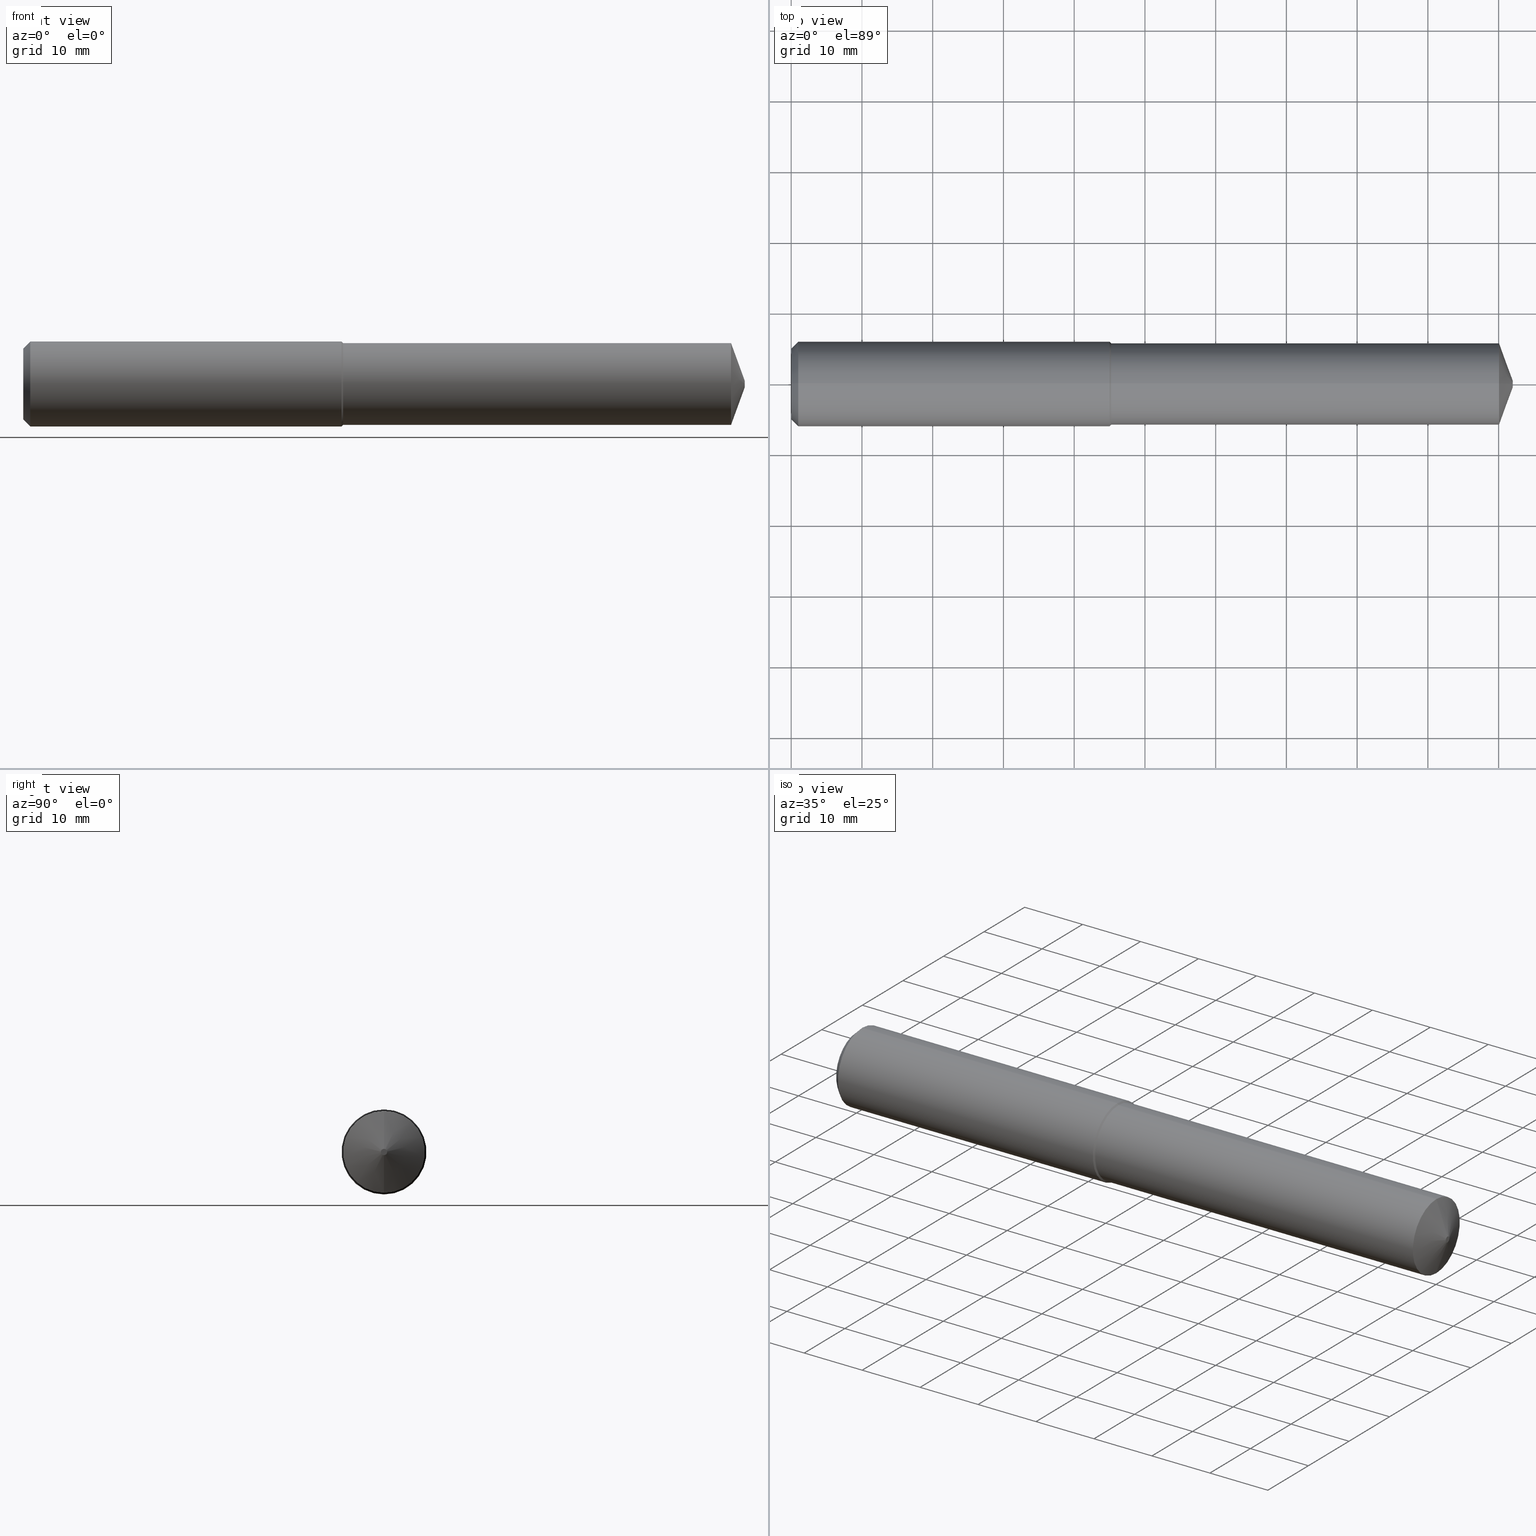
[diagram: canonical four-view strip — front | top / right | iso, engineering-drawing reading convention]
A machine part, canonical four-view strip (front | top / right | iso — engineering-drawing reading convention). The complete STEP part file that produces these views, byte-faithful:
ISO-10303-21;
HEADER;
FILE_DESCRIPTION (( 'STEP AP203' ),
    '1' );
FILE_NAME ('407018-DFX3-455A.STEP',
    '2024-10-02T22:23:27',
    ( '' ),
    ( '' ),
    'SwSTEP 2.0',
    'SolidWorks 2024',
    '' );
FILE_SCHEMA (( 'CONFIG_CONTROL_DESIGN' ));
ENDSEC;

DATA;
#1 = ADVANCED_FACE ( 'NONE', ( #353 ), #197, .T. ) ;
#2 = ORIENTED_EDGE ( 'NONE', *, *, #256, .F. ) ;
#3 = EDGE_LOOP ( 'NONE', ( #287, #314, #378, #377 ) ) ;
#4 = AXIS2_PLACEMENT_3D ( 'NONE', #15, #136, #66 ) ;
#5 = APPROVAL_ROLE ( '' ) ;
#6 = CARTESIAN_POINT ( 'NONE',  ( -0.03808593750000075634, 2.892866454678788763E-17, 0.2362204724409450174 ) ) ;
#7 = DIRECTION ( 'NONE',  ( 0.000000000000000000, 0.000000000000000000, -1.000000000000000000 ) ) ;
#8 = EDGE_CURVE ( 'NONE', #167, #148, #93, .T. ) ;
#9 = CARTESIAN_POINT ( 'NONE',  ( 3.939314282300160563, 0.000000000000000000, 0.000000000000000000 ) ) ;
#10 = DIRECTION ( 'NONE',  ( 0.000000000000000000, 0.000000000000000000, -1.000000000000000000 ) ) ;
#11 = CC_DESIGN_PERSON_AND_ORGANIZATION_ASSIGNMENT ( #90, #76, ( #86 ) ) ;
#12 = CARTESIAN_POINT ( 'NONE',  ( 1.771653543307086576, 0.000000000000000000, 0.000000000000000000 ) ) ;
#13 = DIRECTION ( 'NONE',  ( 1.000000000000000000, 0.000000000000000000, -0.000000000000000000 ) ) ;
#14 = AXIS2_PLACEMENT_3D ( 'NONE', #335, #184, #125 ) ;
#15 = CARTESIAN_POINT ( 'NONE',  ( 1.780374015748031447, 0.000000000000000000, 0.000000000000000000 ) ) ;
#16 =( NAMED_UNIT ( * ) PLANE_ANGLE_UNIT ( ) SI_UNIT ( $, .RADIAN. ) );
#17 = ORIENTED_EDGE ( 'NONE', *, *, #38, .F. ) ;
#18 = ORIENTED_EDGE ( 'NONE', *, *, #276, .T. ) ;
#19 = CLOSED_SHELL ( 'NONE', ( #124, #95, #313, #69, #24, #1, #234, #269, #161, #165, #299, #263 ) ) ;
#20 = LOCAL_TIME ( 15, 23, 27.00000000000000000, #232 ) ;
#21 = DIRECTION ( 'NONE',  ( 0.000000000000000000, 0.000000000000000000, -1.000000000000000000 ) ) ;
#22 = ORIENTED_EDGE ( 'NONE', *, *, #63, .F. ) ;
#23 = CC_DESIGN_DATE_AND_TIME_ASSIGNMENT ( #376, #262, ( #169 ) ) ;
#24 = ADVANCED_FACE ( 'NONE', ( #226 ), #260, .T. ) ;
#25 = PERSON_AND_ORGANIZATION_ROLE ( 'creator' ) ;
#26 = ORIENTED_EDGE ( 'NONE', *, *, #8, .F. ) ;
#27 = CALENDAR_DATE ( 2024, 2, 10 ) ;
#28 = DIRECTION ( 'NONE',  ( -1.000000000000000000, 0.000000000000000000, 0.000000000000000000 ) ) ;
#29 = PRODUCT_DEFINITION_SHAPE ( 'NONE', 'NONE',  #98 ) ;
#30 = AXIS2_PLACEMENT_3D ( 'NONE', #367, #274, #243 ) ;
#31 = ORIENTED_EDGE ( 'NONE', *, *, #211, .T. ) ;
#32 = VERTEX_POINT ( 'NONE', #352 ) ;
#33 = DIRECTION ( 'NONE',  ( 1.000000000000000000, -0.000000000000000000, -0.000000000000000000 ) ) ;
#34 = PERSON_AND_ORGANIZATION_ROLE ( 'design_owner' ) ;
#35 = AXIS2_PLACEMENT_3D ( 'NONE', #305, #13, #46 ) ;
#36 = DIRECTION ( 'NONE',  ( 1.000000000000000000, -0.000000000000000000, -0.000000000000000000 ) ) ;
#37 = LOCAL_TIME ( 15, 23, 27.00000000000000000, #151 ) ;
#38 = EDGE_CURVE ( 'NONE', #133, #148, #57, .T. ) ;
#39 = FACE_OUTER_BOUND ( 'NONE', #258, .T. ) ;
#40 = DATE_AND_TIME ( #319, #131 ) ;
#41 = CARTESIAN_POINT ( 'NONE',  ( -0.03808593750000075634, 0.000000000000000000, 0.000000000000000000 ) ) ;
#42 = CARTESIAN_POINT ( 'NONE',  ( 1.771653543307086576, 0.000000000000000000, 0.2362204724409451007 ) ) ;
#43 = CC_DESIGN_APPROVAL ( #321, ( #169 ) ) ;
#44 = DIRECTION ( 'NONE',  ( 0.000000000000000000, 0.000000000000000000, -1.000000000000000000 ) ) ;
#45 = FACE_OUTER_BOUND ( 'NONE', #55, .T. ) ;
#46 = DIRECTION ( 'NONE',  ( -0.000000000000000000, 0.000000000000000000, -1.000000000000000000 ) ) ;
#47 = CONICAL_SURFACE ( 'NONE', #326, 0.2275000000000002021, 0.7853981633974502774 ) ;
#48 = ORIENTED_EDGE ( 'NONE', *, *, #334, .F. ) ;
#49 = LINE ( 'NONE', #217, #119 ) ;
#50 = VERTEX_POINT ( 'NONE', #317 ) ;
#51 = AXIS2_PLACEMENT_3D ( 'NONE', #203, #231, #143 ) ;
#52 = DIRECTION ( 'NONE',  ( 1.000000000000000000, -0.000000000000000000, -0.000000000000000000 ) ) ;
#53 = PERSON_AND_ORGANIZATION ( #180, #310 ) ;
#54 = ORIENTED_EDGE ( 'NONE', *, *, #322, .F. ) ;
#55 = EDGE_LOOP ( 'NONE', ( #255, #320, #285, #31 ) ) ;
#56 = ORIENTED_EDGE ( 'NONE', *, *, #75, .T. ) ;
#57 = LINE ( 'NONE', #291, #237 ) ;
#58 = FACE_OUTER_BOUND ( 'NONE', #191, .T. ) ;
#59 = DIRECTION ( 'NONE',  ( 0.000000000000000000, 0.000000000000000000, 1.000000000000000000 ) ) ;
#60 = DIRECTION ( 'NONE',  ( 0.000000000000000000, 0.000000000000000000, -1.000000000000000000 ) ) ;
#61 = APPROVAL_ROLE ( '' ) ;
#62 = CARTESIAN_POINT ( 'NONE',  ( 4.268512490100411279E-18, 0.000000000000000000, -0.1968503937007874405 ) ) ;
#63 = EDGE_CURVE ( 'NONE', #87, #171, #224, .T. ) ;
#64 = LINE ( 'NONE', #6, #152 ) ;
#65 = DIRECTION ( 'NONE',  ( 1.000000000000000000, -0.000000000000000000, -0.000000000000000000 ) ) ;
#66 = DIRECTION ( 'NONE',  ( 0.000000000000000000, 0.000000000000000000, 1.000000000000000000 ) ) ;
#67 = FACE_OUTER_BOUND ( 'NONE', #355, .T. ) ;
#68 = EDGE_LOOP ( 'NONE', ( #371, #308, #257, #177 ) ) ;
#69 = ADVANCED_FACE ( 'NONE', ( #323 ), #336, .T. ) ;
#70 =( CONVERSION_BASED_UNIT ( 'INCH', #73 ) LENGTH_UNIT ( ) NAMED_UNIT ( #140 ) );
#71 = ORIENTED_EDGE ( 'NONE', *, *, #250, .T. ) ;
#72 = AXIS2_PLACEMENT_3D ( 'NONE', #12, #366, #304 ) ;
#73 = LENGTH_MEASURE_WITH_UNIT ( LENGTH_MEASURE( 0.02539999999999999897 ), #345 );
#74 = CARTESIAN_POINT ( 'NONE',  ( -0.03808593750000075634, 0.000000000000000000, 0.000000000000000000 ) ) ;
#75 = EDGE_CURVE ( 'NONE', #117, #133, #186, .T. ) ;
#76 = PERSON_AND_ORGANIZATION_ROLE ( 'design_supplier' ) ;
#77 = CONICAL_SURFACE ( 'NONE', #213, 0.2362204724409449619, 0.7853981633974487231 ) ;
#78 = CONICAL_SURFACE ( 'NONE', #4, 0.2275000000000002021, 0.7853981633974502774 ) ;
#79 = VERTEX_POINT ( 'NONE', #91 ) ;
#80 = EDGE_CURVE ( 'NONE', #133, #327, #130, .T. ) ;
#81 = PERSON_AND_ORGANIZATION_ROLE ( 'classification_officer' ) ;
#82 = CARTESIAN_POINT ( 'NONE',  ( 3.939314282300160563, 0.000000000000000000, 0.000000000000000000 ) ) ;
#83 = CARTESIAN_POINT ( 'NONE',  ( 1.186075246418296407E-18, 0.1968503937007874405, 0.000000000000000000 ) ) ;
#84 = AXIS2_PLACEMENT_3D ( 'NONE', #205, #65, #7 ) ;
#85 = CC_DESIGN_PERSON_AND_ORGANIZATION_ASSIGNMENT ( #282, #25, ( #98 ) ) ;
#86 = PRODUCT_DEFINITION_FORMATION_WITH_SPECIFIED_SOURCE ( 'ANY', '', #252, .NOT_KNOWN. ) ;
#87 = VERTEX_POINT ( 'NONE', #122 ) ;
#88 = DIRECTION ( 'NONE',  ( 1.000000000000000000, -0.000000000000000000, -0.000000000000000000 ) ) ;
#89 = EDGE_CURVE ( 'NONE', #32, #148, #300, .T. ) ;
#90 = PERSON_AND_ORGANIZATION ( #180, #310 ) ;
#91 = CARTESIAN_POINT ( 'NONE',  ( 4.015748031496062964, 1.500192328955513910E-17, -0.01750000000000049780 ) ) ;
#92 = APPLICATION_PROTOCOL_DEFINITION ( 'international standard', 'config_control_design', 1994, #230 ) ;
#93 = CIRCLE ( 'NONE', #51, 0.2362204724409451007 ) ;
#94 = DIRECTION ( 'NONE',  ( 0.000000000000000000, 0.000000000000000000, -1.000000000000000000 ) ) ;
#95 = ADVANCED_FACE ( 'NONE', ( #153 ), #331, .T. ) ;
#96 = CARTESIAN_POINT ( 'NONE',  ( -0.03808593750000075634, 0.000000000000000000, 0.000000000000000000 ) ) ;
#97 = CARTESIAN_POINT ( 'NONE',  ( 4.015748031496062964, 0.000000000000000000, 0.01750000000000049780 ) ) ;
#98 = PRODUCT_DEFINITION ( 'UNKNOWN', '', #86, #128 ) ;
#99 = FACE_OUTER_BOUND ( 'NONE', #350, .T. ) ;
#100 = CIRCLE ( 'NONE', #289, 0.01750000000000049780 ) ;
#101 = LINE ( 'NONE', #110, #218 ) ;
#102 = ORIENTED_EDGE ( 'NONE', *, *, #38, .T. ) ;
#103 = EDGE_CURVE ( 'NONE', #327, #133, #187, .T. ) ;
#104 = LINE ( 'NONE', #346, #349 ) ;
#105 = DIRECTION ( 'NONE',  ( 0.000000000000000000, 0.000000000000000000, -1.000000000000000000 ) ) ;
#106 = VERTEX_POINT ( 'NONE', #236 ) ;
#107 = AXIS2_PLACEMENT_3D ( 'NONE', #74, #214, #189 ) ;
#108 = AXIS2_PLACEMENT_3D ( 'NONE', #123, #88, #94 ) ;
#109 = EDGE_CURVE ( 'NONE', #117, #149, #288, .T. ) ;
#110 = CARTESIAN_POINT ( 'NONE',  ( 0.03937007874015747977, 2.892866454678788147E-17, 0.2362204724409449619 ) ) ;
#111 = COORDINATED_UNIVERSAL_TIME_OFFSET ( 8, 0, .BEHIND. ) ;
#112 = ORIENTED_EDGE ( 'NONE', *, *, #328, .T. ) ;
#113 = AXIS2_PLACEMENT_3D ( 'NONE', #301, #267, #365 ) ;
#114 = DATE_AND_TIME ( #254, #20 ) ;
#115 = EDGE_LOOP ( 'NONE', ( #283, #228, #141, #48 ) ) ;
#116 = ORIENTED_EDGE ( 'NONE', *, *, #341, .F. ) ;
#117 = VERTEX_POINT ( 'NONE', #62 ) ;
#118 = CIRCLE ( 'NONE', #168, 0.2275000000000002021 ) ;
#119 = VECTOR ( 'NONE', #216, 39.37007874015748143 ) ;
#120 = ORIENTED_EDGE ( 'NONE', *, *, #103, .T. ) ;
#121 = APPROVAL_ROLE ( '' ) ;
#122 = CARTESIAN_POINT ( 'NONE',  ( 3.939314282300160563, 2.786071468060234087E-17, -0.2275000000000004796 ) ) ;
#123 = CARTESIAN_POINT ( 'NONE',  ( 0.03937007874015747977, 0.000000000000000000, 0.000000000000000000 ) ) ;
#124 = ADVANCED_FACE ( 'NONE', ( #39 ), #316, .T. ) ;
#125 = DIRECTION ( 'NONE',  ( 0.000000000000000000, 0.000000000000000000, -1.000000000000000000 ) ) ;
#126 = CARTESIAN_POINT ( 'NONE',  ( 0.03937007874015747977, 0.000000000000000000, 0.000000000000000000 ) ) ;
#127 = CARTESIAN_POINT ( 'NONE',  ( 1.780374015748031447, 0.000000000000000000, 0.000000000000000000 ) ) ;
#128 = DESIGN_CONTEXT ( 'detailed design', #230, 'design' ) ;
#129 = CARTESIAN_POINT ( 'NONE',  ( 1.780374015748031447, 0.000000000000000000, 0.000000000000000000 ) ) ;
#130 = CIRCLE ( 'NONE', #108, 0.2362204724409449619 ) ;
#131 = LOCAL_TIME ( 15, 23, 27.00000000000000000, #359 ) ;
#132 = DIRECTION ( 'NONE',  ( 0.7071067811865472397, 8.659560562354936556E-17, 0.7071067811865477948 ) ) ;
#133 = VERTEX_POINT ( 'NONE', #363 ) ;
#134 = DIRECTION ( 'NONE',  ( -0.7071067811865461294, 0.000000000000000000, 0.7071067811865489050 ) ) ;
#135 = EDGE_CURVE ( 'NONE', #106, #171, #156, .T. ) ;
#136 = DIRECTION ( 'NONE',  ( -1.000000000000000000, 0.000000000000000000, 0.000000000000000000 ) ) ;
#137 = EDGE_LOOP ( 'NONE', ( #248, #245, #374, #17 ) ) ;
#138 = APPROVAL_PERSON_ORGANIZATION ( #351, #159, #121 ) ;
#139 = DIRECTION ( 'NONE',  ( 0.000000000000000000, 0.000000000000000000, -1.000000000000000000 ) ) ;
#140 = DIMENSIONAL_EXPONENTS ( 1.000000000000000000, 0.000000000000000000, 0.000000000000000000, 0.000000000000000000, 0.000000000000000000, 0.000000000000000000, 0.000000000000000000 ) ;
#141 = ORIENTED_EDGE ( 'NONE', *, *, #145, .T. ) ;
#142 = APPROVAL_STATUS ( 'not_yet_approved' ) ;
#143 = DIRECTION ( 'NONE',  ( 0.000000000000000000, 0.000000000000000000, -1.000000000000000000 ) ) ;
#144 = APPROVAL_DATE_TIME ( #40, #240 ) ;
#145 = EDGE_CURVE ( 'NONE', #148, #167, #324, .T. ) ;
#146 = ORIENTED_EDGE ( 'NONE', *, *, #8, .T. ) ;
#147 = AXIS2_PLACEMENT_3D ( 'NONE', #193, #220, #278 ) ;
#148 = VERTEX_POINT ( 'NONE', #160 ) ;
#149 = VERTEX_POINT ( 'NONE', #209 ) ;
#150 = ORIENTED_EDGE ( 'NONE', *, *, #246, .T. ) ;
#151 = COORDINATED_UNIVERSAL_TIME_OFFSET ( 8, 0, .BEHIND. ) ;
#152 = VECTOR ( 'NONE', #233, 39.37007874015748143 ) ;
#153 = FACE_OUTER_BOUND ( 'NONE', #137, .T. ) ;
#154 = DATE_AND_TIME ( #206, #356 ) ;
#155 = FACE_OUTER_BOUND ( 'NONE', #3, .T. ) ;
#156 = LINE ( 'NONE', #273, #332 ) ;
#157 = CIRCLE ( 'NONE', #309, 0.1968503937007874405 ) ;
#158 = CARTESIAN_POINT ( 'NONE',  ( 4.015748031496062964, 2.143131898507929234E-18, -0.01750000000000049780 ) ) ;
#159 = APPROVAL ( #235, 'UNSPECIFIED' ) ;
#160 = CARTESIAN_POINT ( 'NONE',  ( 1.771653543307086576, 2.892866454678789379E-17, -0.2362204724409451007 ) ) ;
#161 = ADVANCED_FACE ( 'NONE', ( #155 ), #266, .T. ) ;
#162 = CARTESIAN_POINT ( 'NONE',  ( 0.03937007874015747977, 0.000000000000000000, 0.000000000000000000 ) ) ;
#163 = DIRECTION ( 'NONE',  ( 1.000000000000000000, -0.000000000000000000, -0.000000000000000000 ) ) ;
#164 = ORIENTED_EDGE ( 'NONE', *, *, #322, .T. ) ;
#165 = ADVANCED_FACE ( 'NONE', ( #58 ), #47, .T. ) ;
#166 = DIRECTION ( 'NONE',  ( 1.000000000000000000, -0.000000000000000000, -0.000000000000000000 ) ) ;
#167 = VERTEX_POINT ( 'NONE', #42 ) ;
#168 = AXIS2_PLACEMENT_3D ( 'NONE', #129, #166, #105 ) ;
#169 = SECURITY_CLASSIFICATION ( '', '', #284 ) ;
#170 = MECHANICAL_CONTEXT ( 'NONE', #361, 'mechanical' ) ;
#171 = VERTEX_POINT ( 'NONE', #185 ) ;
#172 = APPROVAL_DATE_TIME ( #347, #159 ) ;
#173 = DIRECTION ( 'NONE',  ( 0.000000000000000000, 0.000000000000000000, 1.000000000000000000 ) ) ;
#174 = ORIENTED_EDGE ( 'NONE', *, *, #80, .F. ) ;
#175 = DIRECTION ( 'NONE',  ( -1.000000000000000000, 0.000000000000000000, 0.000000000000000000 ) ) ;
#176 = EDGE_CURVE ( 'NONE', #327, #167, #64, .T. ) ;
#177 = ORIENTED_EDGE ( 'NONE', *, *, #227, .F. ) ;
#178 = CC_DESIGN_PERSON_AND_ORGANIZATION_ASSIGNMENT ( #196, #81, ( #169 ) ) ;
#179 = DIRECTION ( 'NONE',  ( -1.000000000000000000, 0.000000000000000000, 0.000000000000000000 ) ) ;
#180 = PERSON ( 'UNSPECIFIED', 'UNSPECIFIED', 'UNSPECIFIED', ('UNSPECIFIED'), ('UNSPECIFIED'), ('UNSPECIFIED') ) ;
#181 = COORDINATED_UNIVERSAL_TIME_OFFSET ( 8, 0, .BEHIND. ) ;
#182 = VECTOR ( 'NONE', #297, 39.37007874015748143 ) ;
#183 = CC_DESIGN_APPROVAL ( #240, ( #86 ) ) ;
#184 = DIRECTION ( 'NONE',  ( 1.000000000000000000, -0.000000000000000000, -0.000000000000000000 ) ) ;
#185 = CARTESIAN_POINT ( 'NONE',  ( 3.939314282300160563, 0.000000000000000000, 0.2275000000000004796 ) ) ;
#186 = LINE ( 'NONE', #293, #182 ) ;
#187 = CIRCLE ( 'NONE', #249, 0.2362204724409449619 ) ;
#188 = DIRECTION ( 'NONE',  ( 0.000000000000000000, 0.000000000000000000, -1.000000000000000000 ) ) ;
#189 = DIRECTION ( 'NONE',  ( 0.000000000000000000, 0.000000000000000000, -1.000000000000000000 ) ) ;
#190 = CARTESIAN_POINT ( 'NONE',  ( 1.780374015748031447, 0.000000000000000000, 0.000000000000000000 ) ) ;
#191 = EDGE_LOOP ( 'NONE', ( #259, #2, #201, #146 ) ) ;
#192 = EDGE_CURVE ( 'NONE', #79, #87, #360, .T. ) ;
#193 = CARTESIAN_POINT ( 'NONE',  ( 4.015748031496062964, 0.000000000000000000, 0.000000000000000000 ) ) ;
#194 = CYLINDRICAL_SURFACE ( 'NONE', #107, 0.2362204724409450174 ) ;
#195 = EDGE_LOOP ( 'NONE', ( #150, #199, #22, #116 ) ) ;
#196 = PERSON_AND_ORGANIZATION ( #180, #310 ) ;
#197 = PLANE ( 'NONE',  #242 ) ;
#198 = VECTOR ( 'NONE', #212, 39.37007874015748143 ) ;
#199 = ORIENTED_EDGE ( 'NONE', *, *, #135, .T. ) ;
#200 = MANIFOLD_SOLID_BREP ( 'Body', #19 ) ;
#201 = ORIENTED_EDGE ( 'NONE', *, *, #334, .T. ) ;
#202 = DIRECTION ( 'NONE',  ( 0.000000000000000000, 0.000000000000000000, 1.000000000000000000 ) ) ;
#203 = CARTESIAN_POINT ( 'NONE',  ( 1.771653543307086576, 0.000000000000000000, 0.000000000000000000 ) ) ;
#204 = DIRECTION ( 'NONE',  ( -0.7071067811865461294, 8.659560562354950115E-17, -0.7071067811865489050 ) ) ;
#205 = CARTESIAN_POINT ( 'NONE',  ( -0.03808593750000075634, 0.000000000000000000, 0.000000000000000000 ) ) ;
#206 = CALENDAR_DATE ( 2024, 2, 10 ) ;
#207 = AXIS2_PLACEMENT_3D ( 'NONE', #190, #312, #139 ) ;
#208 =( GEOMETRIC_REPRESENTATION_CONTEXT ( 3 ) GLOBAL_UNCERTAINTY_ASSIGNED_CONTEXT ( ( #286 ) ) GLOBAL_UNIT_ASSIGNED_CONTEXT ( ( #70, #16, #247 ) ) REPRESENTATION_CONTEXT ( 'NONE', 'WORKASPACE' ) );
#209 = CARTESIAN_POINT ( 'NONE',  ( 4.268512490100411279E-18, 2.651794250122222108E-17, 0.1968503937007874405 ) ) ;
#210 = DIRECTION ( 'NONE',  ( 1.000000000000000000, -0.000000000000000000, -0.000000000000000000 ) ) ;
#211 = EDGE_CURVE ( 'NONE', #171, #87, #275, .T. ) ;
#212 = DIRECTION ( 'NONE',  ( -0.3420201433256673806, 0.000000000000000000, 0.9396926207859088720 ) ) ;
#213 = AXIS2_PLACEMENT_3D ( 'NONE', #162, #277, #21 ) ;
#214 = DIRECTION ( 'NONE',  ( 1.000000000000000000, -0.000000000000000000, -0.000000000000000000 ) ) ;
#215 = CARTESIAN_POINT ( 'NONE',  ( 0.03937007874015747977, 2.892866454678788147E-17, 0.2362204724409449619 ) ) ;
#216 = DIRECTION ( 'NONE',  ( 1.000000000000000000, -0.000000000000000000, -0.000000000000000000 ) ) ;
#217 = CARTESIAN_POINT ( 'NONE',  ( -0.03808593750000075634, 0.000000000000000000, -0.2275000000000003686 ) ) ;
#218 = VECTOR ( 'NONE', #132, 39.37007874015748143 ) ;
#219 = ORIENTED_EDGE ( 'NONE', *, *, #176, .F. ) ;
#220 = DIRECTION ( 'NONE',  ( 1.000000000000000000, -0.000000000000000000, -0.000000000000000000 ) ) ;
#221 = APPLICATION_PROTOCOL_DEFINITION ( 'international standard', 'config_control_design', 1994, #361 ) ;
#222 = APPROVAL_STATUS ( 'not_yet_approved' ) ;
#223 = ORIENTED_EDGE ( 'NONE', *, *, #109, .F. ) ;
#224 = CIRCLE ( 'NONE', #338, 0.2275000000000005074 ) ;
#225 = PERSON_AND_ORGANIZATION ( #180, #310 ) ;
#226 = FACE_OUTER_BOUND ( 'NONE', #68, .T. ) ;
#227 = EDGE_CURVE ( 'NONE', #50, #171, #239, .T. ) ;
#228 = ORIENTED_EDGE ( 'NONE', *, *, #89, .T. ) ;
#229 = EDGE_LOOP ( 'NONE', ( #223, #343 ) ) ;
#230 = APPLICATION_CONTEXT ( 'configuration controlled 3d designs of mechanical parts and assemblies' ) ;
#231 = DIRECTION ( 'NONE',  ( 1.000000000000000000, -0.000000000000000000, -0.000000000000000000 ) ) ;
#232 = COORDINATED_UNIVERSAL_TIME_OFFSET ( 8, 0, .BEHIND. ) ;
#233 = DIRECTION ( 'NONE',  ( 1.000000000000000000, -0.000000000000000000, -0.000000000000000000 ) ) ;
#234 = ADVANCED_FACE ( 'NONE', ( #67 ), #279, .T. ) ;
#235 = APPROVAL_STATUS ( 'not_yet_approved' ) ;
#236 = CARTESIAN_POINT ( 'NONE',  ( 1.780374015748031447, 2.786071468060232238E-17, 0.2275000000000002021 ) ) ;
#237 = VECTOR ( 'NONE', #33, 39.37007874015748143 ) ;
#238 = CARTESIAN_POINT ( 'NONE',  ( 1.780374015748031447, 2.786071468060231005E-17, -0.2275000000000002021 ) ) ;
#239 = LINE ( 'NONE', #97, #198 ) ;
#240 = APPROVAL ( #222, 'UNSPECIFIED' ) ;
#241 = DIRECTION ( 'NONE',  ( 1.000000000000000000, -0.000000000000000000, -0.000000000000000000 ) ) ;
#242 = AXIS2_PLACEMENT_3D ( 'NONE', #83, #28, #202 ) ;
#243 = DIRECTION ( 'NONE',  ( 0.000000000000000000, 0.000000000000000000, 1.000000000000000000 ) ) ;
#244 = FACE_OUTER_BOUND ( 'NONE', #290, .T. ) ;
#245 = ORIENTED_EDGE ( 'NONE', *, *, #176, .T. ) ;
#246 = EDGE_CURVE ( 'NONE', #32, #106, #354, .T. ) ;
#247 =( NAMED_UNIT ( * ) SI_UNIT ( $, .STERADIAN. ) SOLID_ANGLE_UNIT ( ) );
#248 = ORIENTED_EDGE ( 'NONE', *, *, #80, .T. ) ;
#249 = AXIS2_PLACEMENT_3D ( 'NONE', #126, #36, #188 ) ;
#250 = EDGE_CURVE ( 'NONE', #149, #117, #157, .T. ) ;
#251 = APPROVAL_DATE_TIME ( #114, #321 ) ;
#252 = PRODUCT ( '407018-DFX3-455A', '407018-DFX3-455A', '', ( #170 ) ) ;
#253 = DIRECTION ( 'NONE',  ( 0.000000000000000000, 0.000000000000000000, -1.000000000000000000 ) ) ;
#254 = CALENDAR_DATE ( 2024, 2, 10 ) ;
#255 = ORIENTED_EDGE ( 'NONE', *, *, #192, .F. ) ;
#256 = EDGE_CURVE ( 'NONE', #106, #32, #118, .T. ) ;
#257 = ORIENTED_EDGE ( 'NONE', *, *, #63, .T. ) ;
#258 = EDGE_LOOP ( 'NONE', ( #375, #164, #174, #315 ) ) ;
#259 = ORIENTED_EDGE ( 'NONE', *, *, #89, .F. ) ;
#260 = CONICAL_SURFACE ( 'NONE', #270, 0.01750000000000049780, 1.221730476396032161 ) ;
#261 = CC_DESIGN_SECURITY_CLASSIFICATION ( #169, ( #86 ) ) ;
#262 = DATE_TIME_ROLE ( 'classification_date' ) ;
#263 = ADVANCED_FACE ( 'NONE', ( #244 ), #77, .T. ) ;
#264 = DIRECTION ( 'NONE',  ( 0.000000000000000000, 0.000000000000000000, 1.000000000000000000 ) ) ;
#265 = DIRECTION ( 'NONE',  ( 1.000000000000000000, 0.000000000000000000, 0.000000000000000000 ) ) ;
#266 = CYLINDRICAL_SURFACE ( 'NONE', #364, 0.2275000000000003686 ) ;
#267 = DIRECTION ( 'NONE',  ( 1.000000000000000000, -0.000000000000000000, -0.000000000000000000 ) ) ;
#268 = CC_DESIGN_DATE_AND_TIME_ASSIGNMENT ( #154, #333, ( #98 ) ) ;
#269 = ADVANCED_FACE ( 'NONE', ( #45 ), #294, .T. ) ;
#270 = AXIS2_PLACEMENT_3D ( 'NONE', #325, #175, #173 ) ;
#271 = APPROVAL_PERSON_ORGANIZATION ( #292, #321, #61 ) ;
#272 = DIRECTION ( 'NONE',  ( -0.3420201433256673806, 1.150791560227850763E-16, -0.9396926207859088720 ) ) ;
#273 = CARTESIAN_POINT ( 'NONE',  ( -0.03808593750000075634, 2.786071468060232854E-17, 0.2275000000000003686 ) ) ;
#274 = DIRECTION ( 'NONE',  ( -1.000000000000000000, 0.000000000000000000, 0.000000000000000000 ) ) ;
#275 = CIRCLE ( 'NONE', #280, 0.2275000000000005074 ) ;
#276 = EDGE_CURVE ( 'NONE', #79, #50, #348, .T. ) ;
#277 = DIRECTION ( 'NONE',  ( 1.000000000000000000, -0.000000000000000000, -0.000000000000000000 ) ) ;
#278 = DIRECTION ( 'NONE',  ( 0.000000000000000000, 0.000000000000000000, -1.000000000000000000 ) ) ;
#279 = PLANE ( 'NONE',  #35 ) ;
#280 = AXIS2_PLACEMENT_3D ( 'NONE', #9, #241, #10 ) ;
#281 = AXIS2_PLACEMENT_3D ( 'NONE', #296, #59, #265 ) ;
#282 = PERSON_AND_ORGANIZATION ( #180, #310 ) ;
#283 = ORIENTED_EDGE ( 'NONE', *, *, #246, .F. ) ;
#284 = SECURITY_CLASSIFICATION_LEVEL ( 'unclassified' ) ;
#285 = ORIENTED_EDGE ( 'NONE', *, *, #227, .T. ) ;
#286 = UNCERTAINTY_MEASURE_WITH_UNIT (LENGTH_MEASURE( 1.000000000000000082E-05 ), #70, 'distance_accuracy_value', 'NONE');
#287 = ORIENTED_EDGE ( 'NONE', *, *, #135, .F. ) ;
#288 = CIRCLE ( 'NONE', #14, 0.1968503937007874405 ) ;
#289 = AXIS2_PLACEMENT_3D ( 'NONE', #311, #370, #342 ) ;
#290 = EDGE_LOOP ( 'NONE', ( #54, #71, #56, #358 ) ) ;
#291 = CARTESIAN_POINT ( 'NONE',  ( -0.03808593750000075634, 0.000000000000000000, -0.2362204724409450174 ) ) ;
#292 = PERSON_AND_ORGANIZATION ( #180, #310 ) ;
#293 = CARTESIAN_POINT ( 'NONE',  ( 0.03937007874015747977, 0.000000000000000000, -0.2362204724409449619 ) ) ;
#294 = CONICAL_SURFACE ( 'NONE', #30, 0.01750000000000049780, 1.221730476396032161 ) ;
#295 = LOCAL_TIME ( 15, 23, 27.00000000000000000, #111 ) ;
#296 = CARTESIAN_POINT ( 'NONE',  ( 0.000000000000000000, 0.000000000000000000, 0.000000000000000000 ) ) ;
#297 = DIRECTION ( 'NONE',  ( 0.7071067811865472397, 0.000000000000000000, -0.7071067811865477948 ) ) ;
#298 = PERSON_AND_ORGANIZATION ( #180, #310 ) ;
#299 = ADVANCED_FACE ( 'NONE', ( #99 ), #194, .T. ) ;
#300 = LINE ( 'NONE', #238, #302 ) ;
#301 = CARTESIAN_POINT ( 'NONE',  ( 0.03937007874015747977, 0.000000000000000000, 0.000000000000000000 ) ) ;
#302 = VECTOR ( 'NONE', #204, 39.37007874015748143 ) ;
#303 = APPROVAL_PERSON_ORGANIZATION ( #298, #240, #5 ) ;
#304 = DIRECTION ( 'NONE',  ( 0.000000000000000000, 0.000000000000000000, -1.000000000000000000 ) ) ;
#305 = CARTESIAN_POINT ( 'NONE',  ( 4.015748031496062964, 0.000000000000000000, 0.000000000000000000 ) ) ;
#306 = CC_DESIGN_PERSON_AND_ORGANIZATION_ASSIGNMENT ( #53, #330, ( #86 ) ) ;
#307 = CARTESIAN_POINT ( 'NONE',  ( 4.268512490100411279E-18, 0.000000000000000000, 0.000000000000000000 ) ) ;
#308 = ORIENTED_EDGE ( 'NONE', *, *, #192, .T. ) ;
#309 = AXIS2_PLACEMENT_3D ( 'NONE', #307, #163, #339 ) ;
#310 = ORGANIZATION ( 'UNSPECIFIED', 'UNSPECIFIED', '' ) ;
#311 = CARTESIAN_POINT ( 'NONE',  ( 4.015748031496062964, 0.000000000000000000, 0.000000000000000000 ) ) ;
#312 = DIRECTION ( 'NONE',  ( 1.000000000000000000, -0.000000000000000000, -0.000000000000000000 ) ) ;
#313 = ADVANCED_FACE ( 'NONE', ( #369 ), #78, .T. ) ;
#314 = ORIENTED_EDGE ( 'NONE', *, *, #256, .T. ) ;
#315 = ORIENTED_EDGE ( 'NONE', *, *, #75, .F. ) ;
#316 = CONICAL_SURFACE ( 'NONE', #113, 0.2362204724409449619, 0.7853981633974487231 ) ;
#317 = CARTESIAN_POINT ( 'NONE',  ( 4.015748031496062964, 0.000000000000000000, 0.01750000000000049780 ) ) ;
#318 = CC_DESIGN_PERSON_AND_ORGANIZATION_ASSIGNMENT ( #225, #34, ( #252 ) ) ;
#319 = CALENDAR_DATE ( 2024, 2, 10 ) ;
#320 = ORIENTED_EDGE ( 'NONE', *, *, #328, .F. ) ;
#321 = APPROVAL ( #142, 'UNSPECIFIED' ) ;
#322 = EDGE_CURVE ( 'NONE', #149, #327, #101, .T. ) ;
#323 = FACE_OUTER_BOUND ( 'NONE', #195, .T. ) ;
#324 = CIRCLE ( 'NONE', #72, 0.2362204724409451007 ) ;
#325 = CARTESIAN_POINT ( 'NONE',  ( 4.015748031496062964, 0.000000000000000000, 0.000000000000000000 ) ) ;
#326 = AXIS2_PLACEMENT_3D ( 'NONE', #127, #179, #264 ) ;
#327 = VERTEX_POINT ( 'NONE', #215 ) ;
#328 = EDGE_CURVE ( 'NONE', #50, #79, #100, .T. ) ;
#329 = DIRECTION ( 'NONE',  ( 1.000000000000000000, -0.000000000000000000, -0.000000000000000000 ) ) ;
#330 = PERSON_AND_ORGANIZATION_ROLE ( 'creator' ) ;
#331 = CYLINDRICAL_SURFACE ( 'NONE', #372, 0.2362204724409450174 ) ;
#332 = VECTOR ( 'NONE', #329, 39.37007874015748143 ) ;
#333 = DATE_TIME_ROLE ( 'creation_date' ) ;
#334 = EDGE_CURVE ( 'NONE', #106, #167, #104, .T. ) ;
#335 = CARTESIAN_POINT ( 'NONE',  ( 4.268512490100411279E-18, 0.000000000000000000, 0.000000000000000000 ) ) ;
#336 = CYLINDRICAL_SURFACE ( 'NONE', #84, 0.2275000000000003686 ) ;
#337 = DIRECTION ( 'NONE',  ( 1.000000000000000000, -0.000000000000000000, -0.000000000000000000 ) ) ;
#338 = AXIS2_PLACEMENT_3D ( 'NONE', #82, #52, #253 ) ;
#339 = DIRECTION ( 'NONE',  ( 0.000000000000000000, 0.000000000000000000, -1.000000000000000000 ) ) ;
#340 = PRODUCT_RELATED_PRODUCT_CATEGORY ( 'detail', '', ( #252 ) ) ;
#341 = EDGE_CURVE ( 'NONE', #32, #87, #49, .T. ) ;
#342 = DIRECTION ( 'NONE',  ( 0.000000000000000000, 0.000000000000000000, -1.000000000000000000 ) ) ;
#343 = ORIENTED_EDGE ( 'NONE', *, *, #250, .F. ) ;
#344 = CC_DESIGN_APPROVAL ( #159, ( #98 ) ) ;
#345 =( LENGTH_UNIT ( ) NAMED_UNIT ( * ) SI_UNIT ( $, .METRE. ) );
#346 = CARTESIAN_POINT ( 'NONE',  ( 1.780374015748031447, 0.000000000000000000, 0.2275000000000002021 ) ) ;
#347 = DATE_AND_TIME ( #362, #295 ) ;
#348 = CIRCLE ( 'NONE', #147, 0.01750000000000049780 ) ;
#349 = VECTOR ( 'NONE', #134, 39.37007874015748143 ) ;
#350 = EDGE_LOOP ( 'NONE', ( #219, #120, #102, #26 ) ) ;
#351 = PERSON_AND_ORGANIZATION ( #180, #310 ) ;
#352 = CARTESIAN_POINT ( 'NONE',  ( 1.780374015748031447, 0.000000000000000000, -0.2275000000000002021 ) ) ;
#353 = FACE_OUTER_BOUND ( 'NONE', #229, .T. ) ;
#354 = CIRCLE ( 'NONE', #207, 0.2275000000000002021 ) ;
#355 = EDGE_LOOP ( 'NONE', ( #112, #18 ) ) ;
#356 = LOCAL_TIME ( 15, 23, 27.00000000000000000, #181 ) ;
#357 = ADVANCED_BREP_SHAPE_REPRESENTATION ( '407018-DFX3-455A', ( #200, #281 ), #208 ) ;
#358 = ORIENTED_EDGE ( 'NONE', *, *, #103, .F. ) ;
#359 = COORDINATED_UNIVERSAL_TIME_OFFSET ( 8, 0, .BEHIND. ) ;
#360 = LINE ( 'NONE', #158, #368 ) ;
#361 = APPLICATION_CONTEXT ( 'configuration controlled 3d designs of mechanical parts and assemblies' ) ;
#362 = CALENDAR_DATE ( 2024, 2, 10 ) ;
#363 = CARTESIAN_POINT ( 'NONE',  ( 0.03937007874015747977, 0.000000000000000000, -0.2362204724409449619 ) ) ;
#364 = AXIS2_PLACEMENT_3D ( 'NONE', #96, #210, #44 ) ;
#365 = DIRECTION ( 'NONE',  ( 0.000000000000000000, 0.000000000000000000, -1.000000000000000000 ) ) ;
#366 = DIRECTION ( 'NONE',  ( 1.000000000000000000, -0.000000000000000000, -0.000000000000000000 ) ) ;
#367 = CARTESIAN_POINT ( 'NONE',  ( 4.015748031496062964, 0.000000000000000000, 0.000000000000000000 ) ) ;
#368 = VECTOR ( 'NONE', #272, 39.37007874015748143 ) ;
#369 = FACE_OUTER_BOUND ( 'NONE', #115, .T. ) ;
#370 = DIRECTION ( 'NONE',  ( 1.000000000000000000, -0.000000000000000000, -0.000000000000000000 ) ) ;
#371 = ORIENTED_EDGE ( 'NONE', *, *, #276, .F. ) ;
#372 = AXIS2_PLACEMENT_3D ( 'NONE', #41, #337, #60 ) ;
#373 = SHAPE_DEFINITION_REPRESENTATION ( #29, #357 ) ;
#374 = ORIENTED_EDGE ( 'NONE', *, *, #145, .F. ) ;
#375 = ORIENTED_EDGE ( 'NONE', *, *, #109, .T. ) ;
#376 = DATE_AND_TIME ( #27, #37 ) ;
#377 = ORIENTED_EDGE ( 'NONE', *, *, #211, .F. ) ;
#378 = ORIENTED_EDGE ( 'NONE', *, *, #341, .T. ) ;
ENDSEC;
END-ISO-10303-21;
